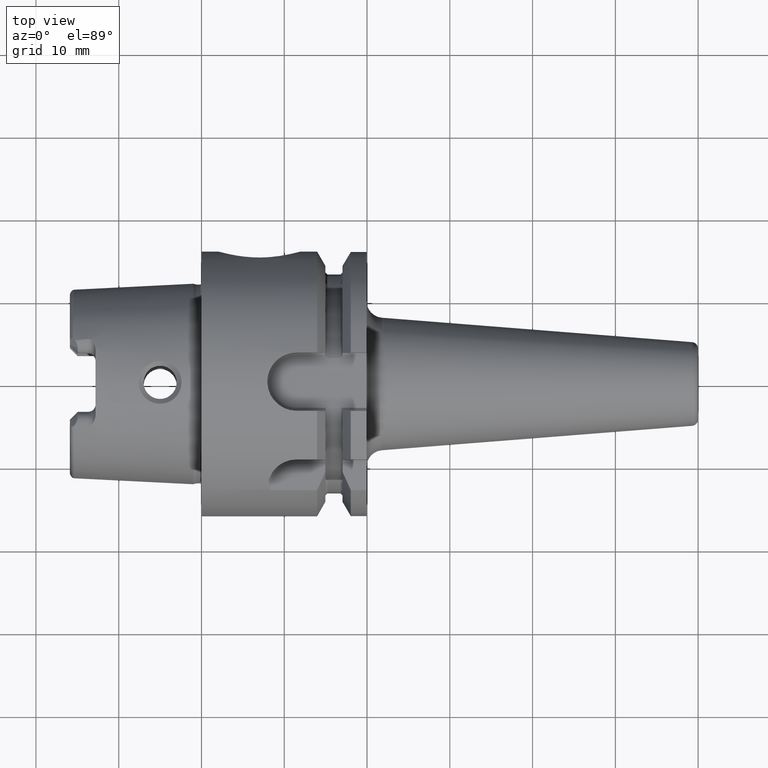
[diagram: clean part render]
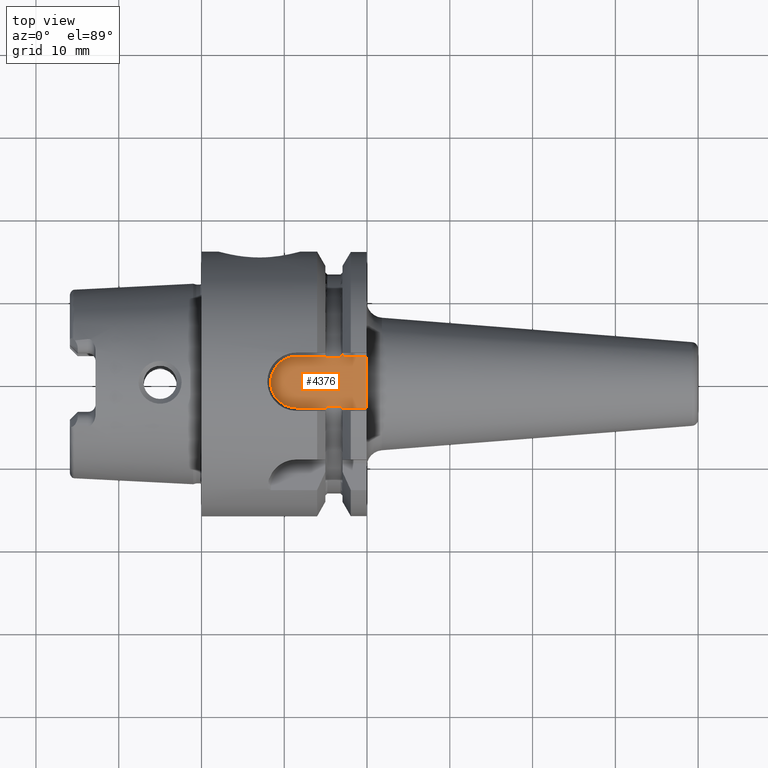
[diagram: same view with one face highlighted and labeled with its STEP entity id]
A machine part, top view. The second image highlights one B-rep face of the part: STEP entity #4376.
In plain terms, the highlighted planar face has unit normal (0, 0, 1).
Its self-contained STEP definition (entity closure, byte-faithful):
#1264=CARTESIAN_POINT('',(1.52125E1,2.913867704615E0,1.29E1));
#1265=CARTESIAN_POINT('',(1.519935760711E1,2.913867704615E0,1.29E1));
#1266=CARTESIAN_POINT('',(1.517570456536E1,2.923314081271E0,1.29E1));
#1267=CARTESIAN_POINT('',(1.514884798910E1,2.949113313559E0,1.29E1));
#1268=CARTESIAN_POINT('',(1.512532339630E1,2.982531446121E0,1.29E1));
#1269=CARTESIAN_POINT('',(1.510406169897E1,3.022711685466E0,1.29E1));
#1270=CARTESIAN_POINT('',(1.508553093664E1,3.065956196770E0,1.29E1));
#1271=CARTESIAN_POINT('',(1.507402006656E1,3.097877692315E0,1.29E1));
#1272=CARTESIAN_POINT('',(1.506848457202E1,3.1145E0,1.29E1));
#1274=CARTESIAN_POINT('',(1.693151542798E1,3.1145E0,1.29E1));
#1275=CARTESIAN_POINT('',(1.692650337206E1,3.099449504501E0,1.29E1));
#1276=CARTESIAN_POINT('',(1.691620662164E1,3.070668301576E0,1.29E1));
#1277=CARTESIAN_POINT('',(1.689987891903E1,3.031593358219E0,1.29E1));
#1278=CARTESIAN_POINT('',(1.688236893608E1,2.996366941418E0,1.29E1));
#1279=CARTESIAN_POINT('',(1.686258400474E1,2.964398341535E0,1.29E1));
#1280=CARTESIAN_POINT('',(1.684091616515E1,2.938265090043E0,1.29E1));
#1281=CARTESIAN_POINT('',(1.681599730418E1,2.919113546640E0,1.29E1));
#1282=CARTESIAN_POINT('',(1.679736069221E1,2.913867704615E0,1.29E1));
#1283=CARTESIAN_POINT('',(1.67875E1,2.913867704615E0,1.29E1));
#1285=DIRECTION('',(1.E0,0.E0,0.E0));
#1286=VECTOR('',#1285,3.018484572018E0);
#1287=CARTESIAN_POINT('',(1.693151542798E1,3.1145E0,1.29E1));
#1288=LINE('',#1287,#1286);
#1289=DIRECTION('',(-1.E0,0.E0,0.E0));
#1290=VECTOR('',#1289,3.018484572018E0);
#1291=CARTESIAN_POINT('',(1.995E1,-3.1145E0,1.29E1));
#1292=LINE('',#1291,#1290);
#1293=CARTESIAN_POINT('',(1.67875E1,-2.913867704615E0,1.29E1));
#1294=CARTESIAN_POINT('',(1.679804377734E1,-2.913867704615E0,1.29E1));
#1295=CARTESIAN_POINT('',(1.681758944231E1,-2.919841051304E0,1.29E1));
#1296=CARTESIAN_POINT('',(1.684264731296E1,-2.940074130288E0,1.29E1));
#1297=CARTESIAN_POINT('',(1.686324211020E1,-2.965504235160E0,1.29E1));
#1298=CARTESIAN_POINT('',(1.688190197218E1,-2.995611038065E0,1.29E1));
#1299=CARTESIAN_POINT('',(1.689925742948E1,-3.030213370819E0,1.29E1));
#1300=CARTESIAN_POINT('',(1.691584136972E1,-3.069683904292E0,1.29E1));
#1301=CARTESIAN_POINT('',(1.692636880646E1,-3.099045423041E0,1.29E1));
#1302=CARTESIAN_POINT('',(1.693151542798E1,-3.1145E0,1.29E1));
#1304=CARTESIAN_POINT('',(1.506848457202E1,-3.1145E0,1.29E1));
#1305=CARTESIAN_POINT('',(1.507419126973E1,-3.097363593395E0,1.29E1));
#1306=CARTESIAN_POINT('',(1.508599967900E1,-3.064656028968E0,1.29E1));
#1307=CARTESIAN_POINT('',(1.510532372866E1,-3.020018429946E0,1.29E1));
#1308=CARTESIAN_POINT('',(1.512629838323E1,-2.981058043235E0,1.29E1));
#1309=CARTESIAN_POINT('',(1.514963324948E1,-2.947989934647E0,1.29E1));
#1310=CARTESIAN_POINT('',(1.517817792495E1,-2.921642200573E0,1.29E1));
#1311=CARTESIAN_POINT('',(1.520045630159E1,-2.913867704615E0,1.29E1));
#1312=CARTESIAN_POINT('',(1.52125E1,-2.913867704615E0,1.29E1));
#1314=DIRECTION('',(-9.999999999993E-1,8.384996727479E-7,8.382504913023E-7));
#1315=VECTOR('',#1314,3.603984557047E0);
#1316=CARTESIAN_POINT('',(1.506848457202E1,-3.1145E0,1.29E1));
#1317=LINE('',#1316,#1315);
#1318=CARTESIAN_POINT('',(1.14645E1,0.E0,1.290000715154E1));
#1319=DIRECTION('',(0.E0,0.E0,-1.E0));
#1320=DIRECTION('',(0.E0,-1.E0,0.E0));
#1321=AXIS2_PLACEMENT_3D('',#1318,#1319,#1320);
#1323=DIRECTION('',(9.999999999993E-1,8.384561466338E-7,-8.382940178897E-7));
#1324=VECTOR('',#1323,3.603984556030E0);
#1325=CARTESIAN_POINT('',(1.146450001599E1,3.114496978217E0,1.290000302120E1));
#1326=LINE('',#1325,#1324);
#1336=DIRECTION('',(-1.E0,0.E0,0.E0));
#1337=VECTOR('',#1336,1.575E0);
#1338=CARTESIAN_POINT('',(1.67875E1,2.913867704615E0,1.29E1));
#1339=LINE('',#1338,#1337);
#1349=DIRECTION('',(1.E0,0.E0,0.E0));
#1350=VECTOR('',#1349,1.575E0);
#1351=CARTESIAN_POINT('',(1.52125E1,-2.913867704615E0,1.29E1));
#1352=LINE('',#1351,#1350);
#1385=DIRECTION('',(0.E0,1.E0,0.E0));
#1386=VECTOR('',#1385,6.229E0);
#1387=CARTESIAN_POINT('',(1.995E1,-3.1145E0,1.29E1));
#1388=LINE('',#1387,#1386);
#2830=CARTESIAN_POINT('',(1.52125E1,-2.913867704615E0,1.29E1));
#2832=VERTEX_POINT('',#2830);
#2833=CARTESIAN_POINT('',(1.52125E1,2.913867704615E0,1.29E1));
#2835=VERTEX_POINT('',#2833);
#2842=CARTESIAN_POINT('',(1.67875E1,-2.913867704615E0,1.29E1));
#2844=VERTEX_POINT('',#2842);
#2845=CARTESIAN_POINT('',(1.67875E1,2.913867704615E0,1.29E1));
#2847=VERTEX_POINT('',#2845);
#2853=VERTEX_POINT('',#1272);
#2854=VERTEX_POINT('',#1304);
#2855=VERTEX_POINT('',#1274);
#2856=VERTEX_POINT('',#1302);
#2881=CARTESIAN_POINT('',(1.14645E1,-3.114489022604E0,1.290000715154E1));
#2882=CARTESIAN_POINT('',(1.14645E1,3.114489022604E0,1.290000715154E1));
#2883=VERTEX_POINT('',#2881);
#2884=VERTEX_POINT('',#2882);
#2893=CARTESIAN_POINT('',(1.995E1,-3.1145E0,1.29E1));
#2895=VERTEX_POINT('',#2893);
#2898=CARTESIAN_POINT('',(1.995E1,3.1145E0,1.29E1));
#2900=VERTEX_POINT('',#2898);
#4351=CARTESIAN_POINT('',(0.E0,0.E0,1.29E1));
#4352=DIRECTION('',(0.E0,0.E0,1.E0));
#4353=DIRECTION('',(1.E0,0.E0,0.E0));
#4354=AXIS2_PLACEMENT_3D('',#4351,#4352,#4353);
#4355=PLANE('',#4354);
#4356=ORIENTED_EDGE('',*,*,#4130,.F.);
#4358=ORIENTED_EDGE('',*,*,#4357,.F.);
#4360=ORIENTED_EDGE('',*,*,#4359,.F.);
#4361=ORIENTED_EDGE('',*,*,#4346,.T.);
#4363=ORIENTED_EDGE('',*,*,#4362,.F.);
#4364=ORIENTED_EDGE('',*,*,#4111,.T.);
#4366=ORIENTED_EDGE('',*,*,#4365,.F.);
#4368=ORIENTED_EDGE('',*,*,#4367,.F.);
#4369=ORIENTED_EDGE('',*,*,#4148,.F.);
#4370=ORIENTED_EDGE('',*,*,#4099,.T.);
#4372=ORIENTED_EDGE('',*,*,#4371,.T.);
#4373=ORIENTED_EDGE('',*,*,#4326,.T.);
#4374=EDGE_LOOP('',(#4356,#4358,#4360,#4361,#4363,#4364,#4366,#4368,#4369,#4370,
#4372,#4373));
#4375=FACE_OUTER_BOUND('',#4374,.F.);
#4376=ADVANCED_FACE('',(#4375),#4355,.T.);
#1273=B_SPLINE_CURVE_WITH_KNOTS('',3,(#1264,#1265,#1266,#1267,#1268,#1269,#1270,
#1271,#1272),.UNSPECIFIED.,.F.,.F.,(4,1,1,1,1,1,4),(0.E0,1.666666666667E-1,
3.333333333333E-1,5.E-1,6.666666666667E-1,8.333333333333E-1,1.E0),
.UNSPECIFIED.);
#1284=B_SPLINE_CURVE_WITH_KNOTS('',3,(#1274,#1275,#1276,#1277,#1278,#1279,#1280,
#1281,#1282,#1283),.UNSPECIFIED.,.F.,.F.,(4,1,1,1,1,1,1,4),(0.E0,
1.428571428571E-1,2.857142857143E-1,4.285714285714E-1,5.714285714286E-1,
7.142857142857E-1,8.571428571429E-1,1.E0),.UNSPECIFIED.);
#1303=B_SPLINE_CURVE_WITH_KNOTS('',3,(#1293,#1294,#1295,#1296,#1297,#1298,#1299,
#1300,#1301,#1302),.UNSPECIFIED.,.F.,.F.,(4,1,1,1,1,1,1,4),(0.E0,
1.428571428571E-1,2.857142857143E-1,4.285714285714E-1,5.714285714286E-1,
7.142857142857E-1,8.571428571429E-1,1.E0),.UNSPECIFIED.);
#1313=B_SPLINE_CURVE_WITH_KNOTS('',3,(#1304,#1305,#1306,#1307,#1308,#1309,#1310,
#1311,#1312),.UNSPECIFIED.,.F.,.F.,(4,1,1,1,1,1,4),(0.E0,1.666666666667E-1,
3.333333333333E-1,5.E-1,6.666666666667E-1,8.333333333333E-1,1.E0),
.UNSPECIFIED.);
#1322=CIRCLE('',#1321,3.114489022604E0);
#4099=EDGE_CURVE('',#2854,#2883,#1317,.T.);
#4111=EDGE_CURVE('',#2895,#2856,#1292,.T.);
#4130=EDGE_CURVE('',#2835,#2853,#1273,.T.);
#4148=EDGE_CURVE('',#2854,#2832,#1313,.T.);
#4326=EDGE_CURVE('',#2884,#2853,#1326,.T.);
#4346=EDGE_CURVE('',#2855,#2900,#1288,.T.);
#4357=EDGE_CURVE('',#2847,#2835,#1339,.T.);
#4359=EDGE_CURVE('',#2855,#2847,#1284,.T.);
#4362=EDGE_CURVE('',#2895,#2900,#1388,.T.);
#4365=EDGE_CURVE('',#2844,#2856,#1303,.T.);
#4367=EDGE_CURVE('',#2832,#2844,#1352,.T.);
#4371=EDGE_CURVE('',#2883,#2884,#1322,.T.);